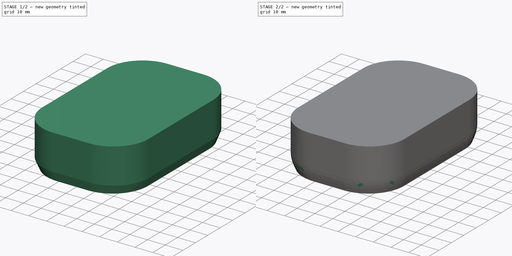
[diagram: build sequence overview — one tinted view per stage of 2, left to right]
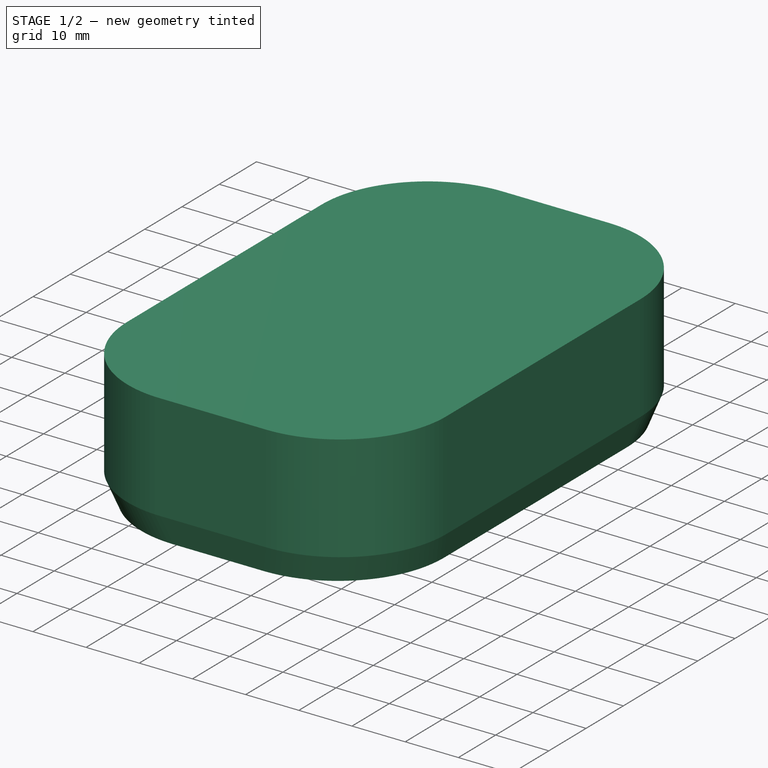
[diagram: stage 1 of 2 — iso view after this stage's code; geometry added in this stage tinted green]
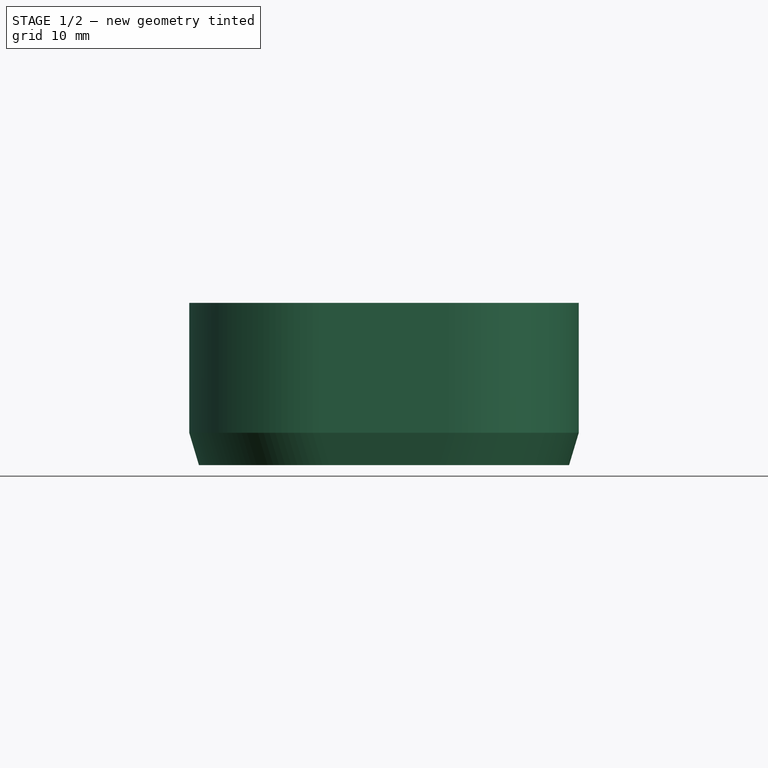
[diagram: stage 1 of 2 — front view after this stage's code; geometry added in this stage tinted green]
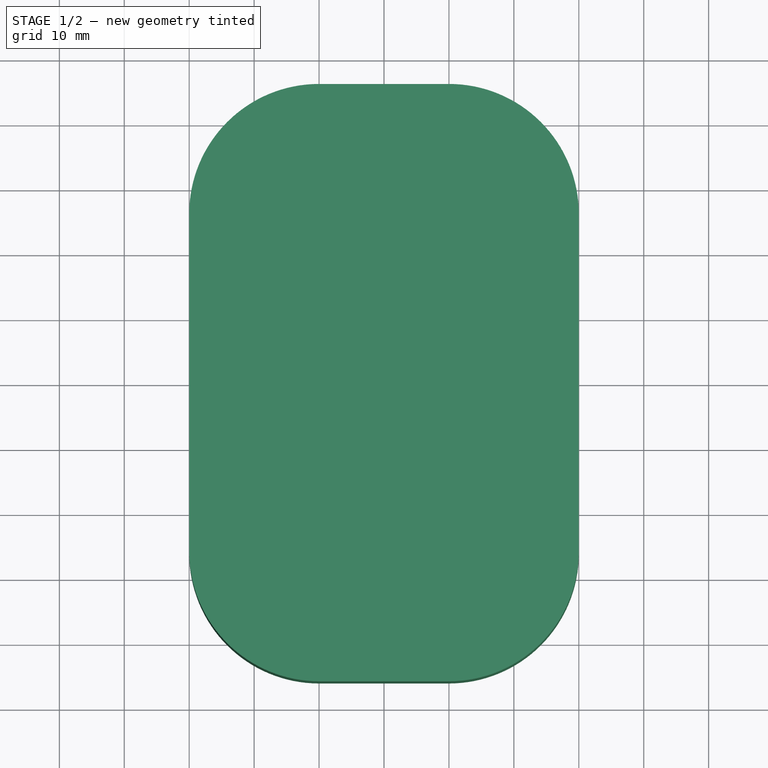
[diagram: stage 1 of 2 — top view after this stage's code; geometry added in this stage tinted green]
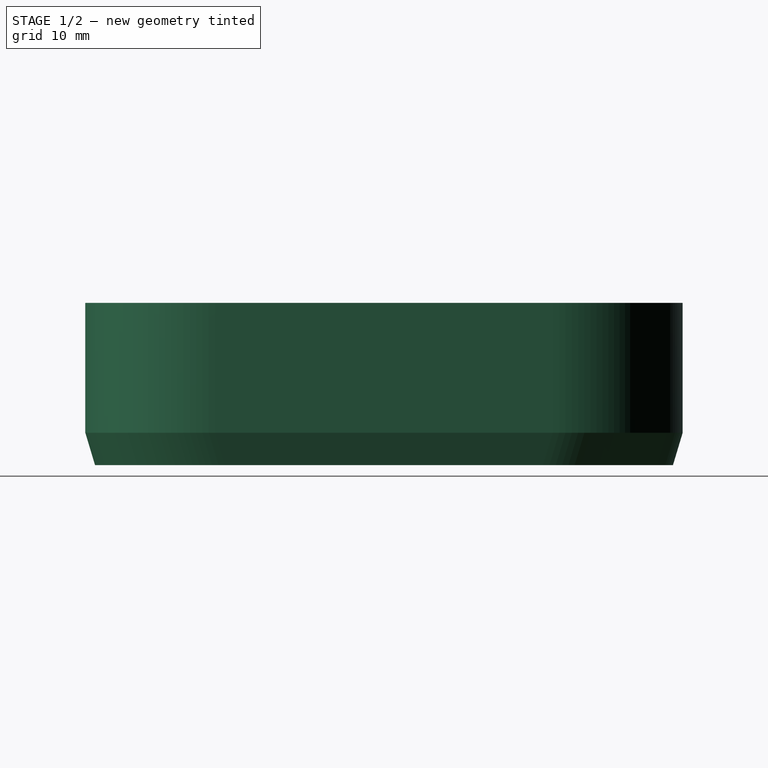
[diagram: stage 1 of 2 — right view after this stage's code; geometry added in this stage tinted green]
FCSTD DOCUMENT  (FreeCAD 0.18.4R)
Label: PetBottlePlate
License: All rights reserved
LicenseURL: http://en.wikipedia.org/wiki/All_rights_reserved
objects: Sketcher::SketchObject×3, PartDesign::AdditiveLoft×1, PartDesign::Fillet×1, PartDesign::Body×1
note: 7 computed .brp shape members not serialized (recipe doc carries the construction recipe); baked Part::Feature solids carry a one-line shape summary decoded from their .brp

FEATURE [Sketcher::SketchObject] Sketch
  AttachmentOffset = pos=(0,0,5) rot=(0,0,1;0rad)
  MapMode = 5
  Placement = pos=(0,0,5) rot=(0,0,1;0rad)
  Support = -> [XY_Plane]
  sketch-geometry (8):
    g0: LineSegment StartX=-10 StartY=46 StartZ=0 EndX=10 EndY=46 EndZ=0
    g1: LineSegment StartX=30 StartY=26 StartZ=0 EndX=30 EndY=-26 EndZ=0
    g2: LineSegment StartX=10 StartY=-46 StartZ=0 EndX=-10 EndY=-46 EndZ=0
    g3: LineSegment StartX=-30 StartY=-26 StartZ=0 EndX=-30 EndY=26 EndZ=0
    g4: ArcOfCircle CenterX=-10 CenterY=26 CenterZ=0 NormalX=0 NormalY=0 NormalZ=1 AngleXU=0 Radius=20 StartAngle=1.5708 EndAngle=3.14159
    g5: ArcOfCircle CenterX=10 CenterY=26 CenterZ=0 NormalX=0 NormalY=0 NormalZ=1 AngleXU=0 Radius=20 StartAngle=0 EndAngle=1.5708
    g6: ArcOfCircle CenterX=10 CenterY=-26 CenterZ=0 NormalX=0 NormalY=0 NormalZ=1 AngleXU=0 Radius=20 StartAngle=4.71239 EndAngle=6.28319
    g7: ArcOfCircle CenterX=-10 CenterY=-26 CenterZ=0 NormalX=0 NormalY=0 NormalZ=1 AngleXU=0 Radius=20 StartAngle=3.14159 EndAngle=4.71239
  constraints (19):
    c: Horizontal(g0)
    c: Horizontal(g2)
    c: Vertical(g1)
    c: Vertical(g3)
    c: Tangent(g0,g4) = 1.5708
    c: Tangent(g3,g4) = 1.5708
    c: Tangent(g0,g5) = 1.5708
    c: Tangent(g1,g5) = 1.5708
    c: Tangent(g1,g6) = 1.5708
    c: Tangent(g2,g6) = 1.5708
    c: Tangent(g2,g7) = 1.5708
    c: Tangent(g3,g7) = 1.5708
    c: Equal(g4,g5)
    c: Equal(g5,g6)
    c: Equal(g6,g7)
    c: DistanceX(g3,g1) = 60
    c: DistanceY(g2,g0) = 92
    c: Radius(g4) = 20
    c: Symmetric(g7,g5,g-1)
FEATURE [Sketcher::SketchObject] Sketch001
  MapMode = 5
  Support = -> [XY_Plane]
  sketch-geometry (8):
    g0: LineSegment StartX=-8.5 StartY=44.5 StartZ=0 EndX=8.5 EndY=44.5 EndZ=0
    g1: LineSegment StartX=28.5 StartY=24.5 StartZ=0 EndX=28.5 EndY=-24.5 EndZ=0
    g2: LineSegment StartX=8.5 StartY=-44.5 StartZ=0 EndX=-8.5 EndY=-44.5 EndZ=0
    g3: LineSegment StartX=-28.5 StartY=-24.5 StartZ=0 EndX=-28.5 EndY=24.5 EndZ=0
    g4: ArcOfCircle CenterX=-8.5 CenterY=24.5 CenterZ=0 NormalX=0 NormalY=0 NormalZ=1 AngleXU=0 Radius=20 StartAngle=1.5708 EndAngle=3.14159
    g5: ArcOfCircle CenterX=8.5 CenterY=24.5 CenterZ=0 NormalX=0 NormalY=0 NormalZ=1 AngleXU=0 Radius=20 StartAngle=-8.9e-15 EndAngle=1.5708
    g6: ArcOfCircle CenterX=8.5 CenterY=-24.5 CenterZ=0 NormalX=0 NormalY=0 NormalZ=1 AngleXU=0 Radius=20 StartAngle=4.71239 EndAngle=6.28319
    g7: ArcOfCircle CenterX=-8.5 CenterY=-24.5 CenterZ=0 NormalX=0 NormalY=0 NormalZ=1 AngleXU=0 Radius=20 StartAngle=3.14159 EndAngle=4.71239
  constraints (19):
    c: Horizontal(g0)
    c: Horizontal(g2)
    c: Vertical(g1)
    c: Vertical(g3)
    c: Tangent(g0,g4) = 1.5708
    c: Tangent(g3,g4) = 1.5708
    c: Tangent(g0,g5) = 1.5708
    c: Tangent(g1,g5) = 1.5708
    c: Tangent(g1,g6) = 1.5708
    c: Tangent(g2,g6) = 1.5708
    c: Tangent(g2,g7) = 1.5708
    c: Tangent(g3,g7) = 1.5708
    c: Equal(g4,g5)
    c: Equal(g5,g6)
    c: Equal(g6,g7)
    c: DistanceX(g3,g1) = 57
    c: DistanceY(g2,g0) = 89
    c: Radius(g4) = 20
    c: Symmetric(g7,g5,g-1)
FEATURE [Sketcher::SketchObject] Sketch002
  AttachmentOffset = pos=(0,0,25) rot=(0,0,1;0rad)
  MapMode = 5
  Placement = pos=(0,0,25) rot=(0,0,1;0rad)
  Support = -> [XY_Plane]
  sketch-geometry (8):
    g0: LineSegment StartX=-10 StartY=46 StartZ=0 EndX=10 EndY=46 EndZ=0
    g1: LineSegment StartX=30 StartY=26 StartZ=0 EndX=30 EndY=-26 EndZ=0
    g2: LineSegment StartX=10 StartY=-46 StartZ=0 EndX=-10 EndY=-46 EndZ=0
    g3: LineSegment StartX=-30 StartY=-26 StartZ=0 EndX=-30 EndY=26 EndZ=0
    g4: ArcOfCircle CenterX=-10 CenterY=26 CenterZ=0 NormalX=0 NormalY=0 NormalZ=1 AngleXU=0 Radius=20 StartAngle=1.5708 EndAngle=3.14159
    g5: ArcOfCircle CenterX=10 CenterY=26 CenterZ=0 NormalX=0 NormalY=0 NormalZ=1 AngleXU=0 Radius=20 StartAngle=0 EndAngle=1.5708
    g6: ArcOfCircle CenterX=10 CenterY=-26 CenterZ=0 NormalX=0 NormalY=0 NormalZ=1 AngleXU=0 Radius=20 StartAngle=4.71239 EndAngle=6.28319
    g7: ArcOfCircle CenterX=-10 CenterY=-26 CenterZ=0 NormalX=0 NormalY=0 NormalZ=1 AngleXU=0 Radius=20 StartAngle=3.14159 EndAngle=4.71239
  constraints (19):
    c: Horizontal(g0)
    c: Horizontal(g2)
    c: Vertical(g1)
    c: Vertical(g3)
    c: Tangent(g0,g4) = 1.5708
    c: Tangent(g3,g4) = 1.5708
    c: Tangent(g0,g5) = 1.5708
    c: Tangent(g1,g5) = 1.5708
    c: Tangent(g1,g6) = 1.5708
    c: Tangent(g2,g6) = 1.5708
    c: Tangent(g2,g7) = 1.5708
    c: Tangent(g3,g7) = 1.5708
    c: Equal(g4,g5)
    c: Equal(g5,g6)
    c: Equal(g6,g7)
    c: DistanceX(g3,g1) = 60
    c: DistanceY(g2,g0) = 92
    c: Radius(g4) = 20
    c: Symmetric(g7,g5,g-1)
FEATURE [PartDesign::AdditiveLoft] AdditiveLoft
  Closed = false
  Profile = -> Sketch001
  Ruled = true
  Sections = -> [Sketch,Sketch002]
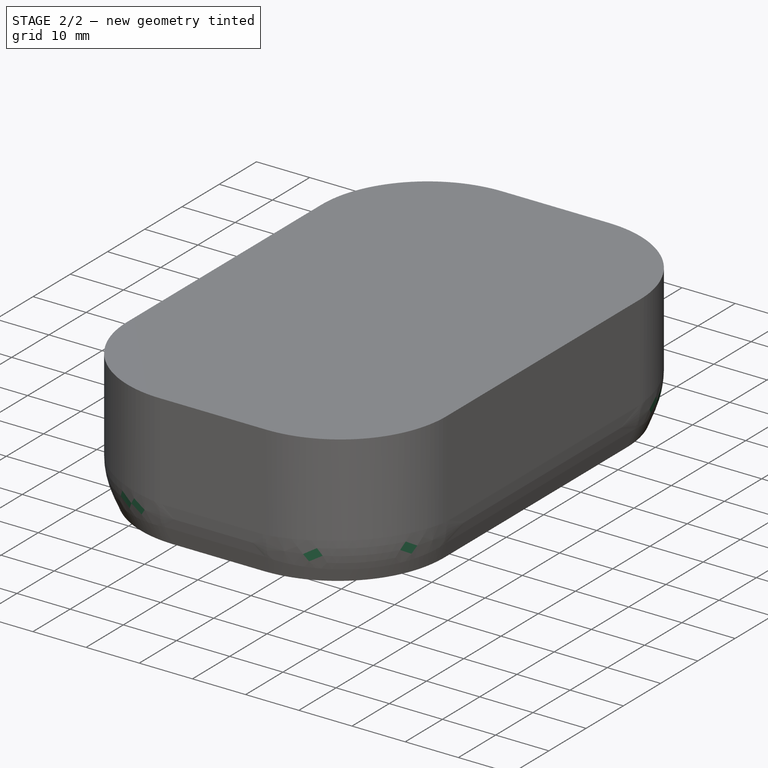
[diagram: stage 2 of 2 — iso view after this stage's code; geometry added in this stage tinted green]
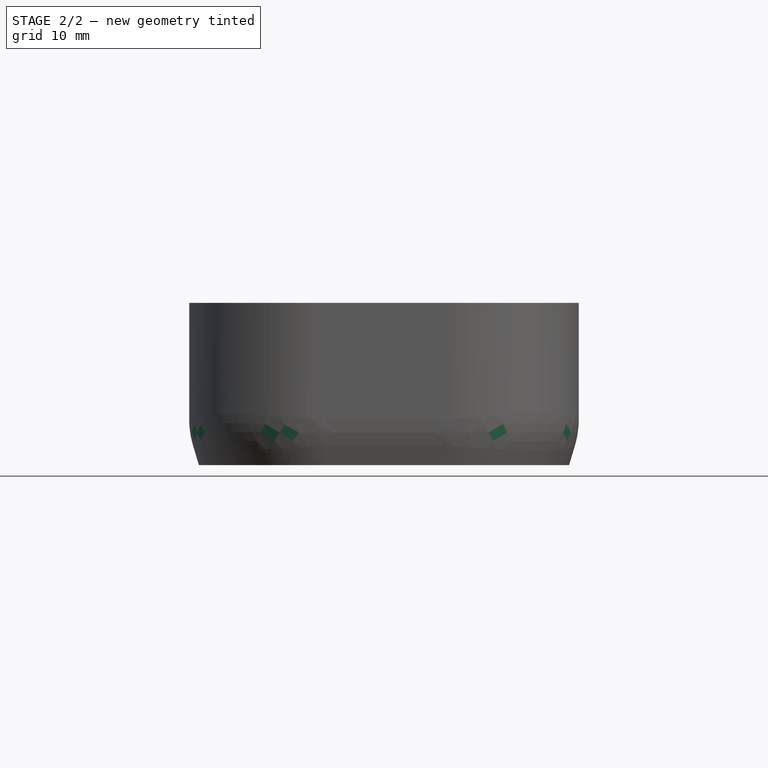
[diagram: stage 2 of 2 — front view after this stage's code; geometry added in this stage tinted green]
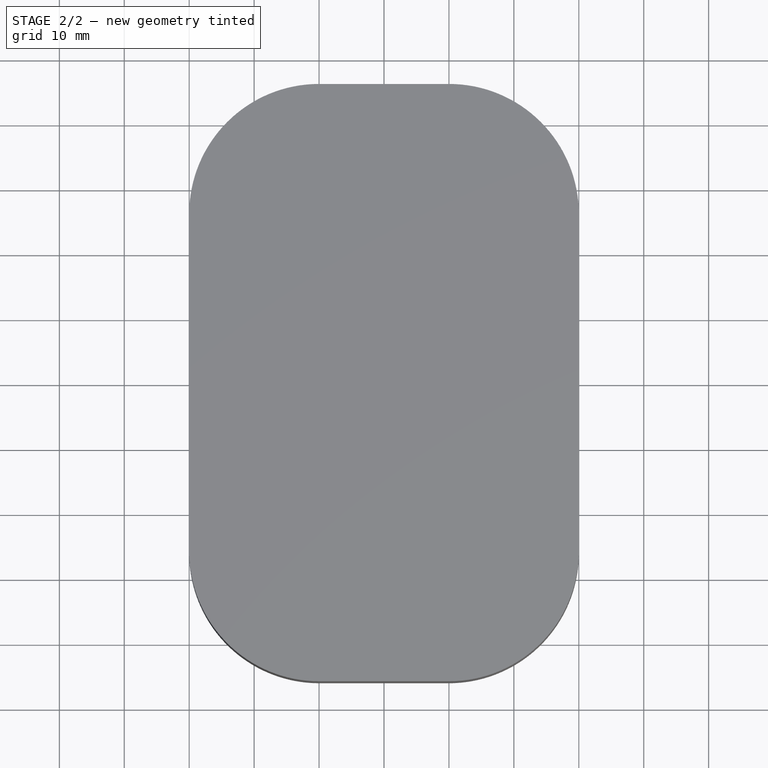
[diagram: stage 2 of 2 — top view after this stage's code; geometry added in this stage tinted green]
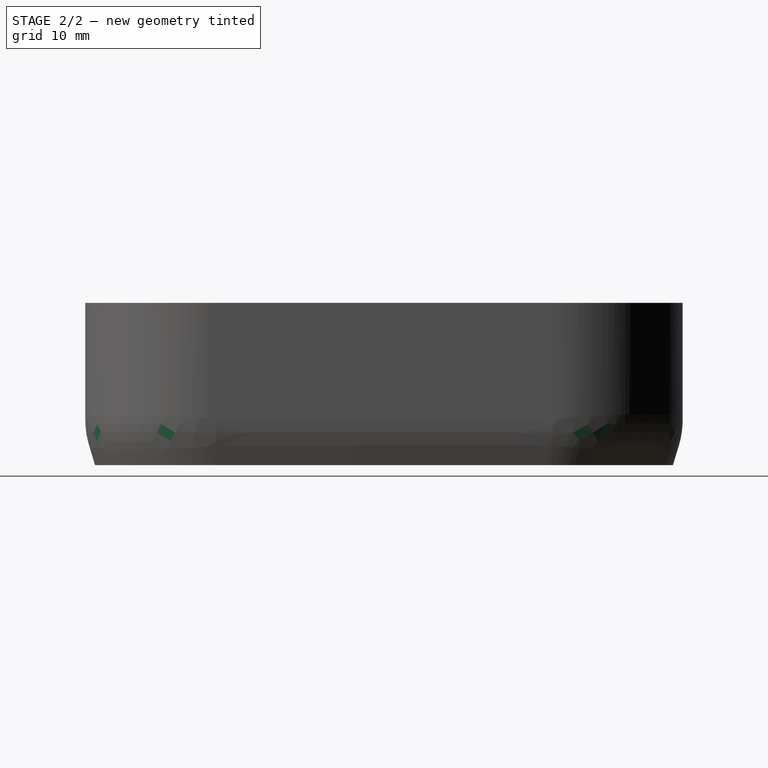
[diagram: stage 2 of 2 — right view after this stage's code; geometry added in this stage tinted green]
FEATURE [PartDesign::Fillet] Fillet
  Base = -> AdditiveLoft [Edge10]
  BaseFeature = -> AdditiveLoft
  Radius = 14
FEATURE [PartDesign::Body] Body
  Group = -> [Sketch001,Sketch,Sketch002,AdditiveLoft,Fillet]
  Origin = -> Origin
  Tip = -> Fillet
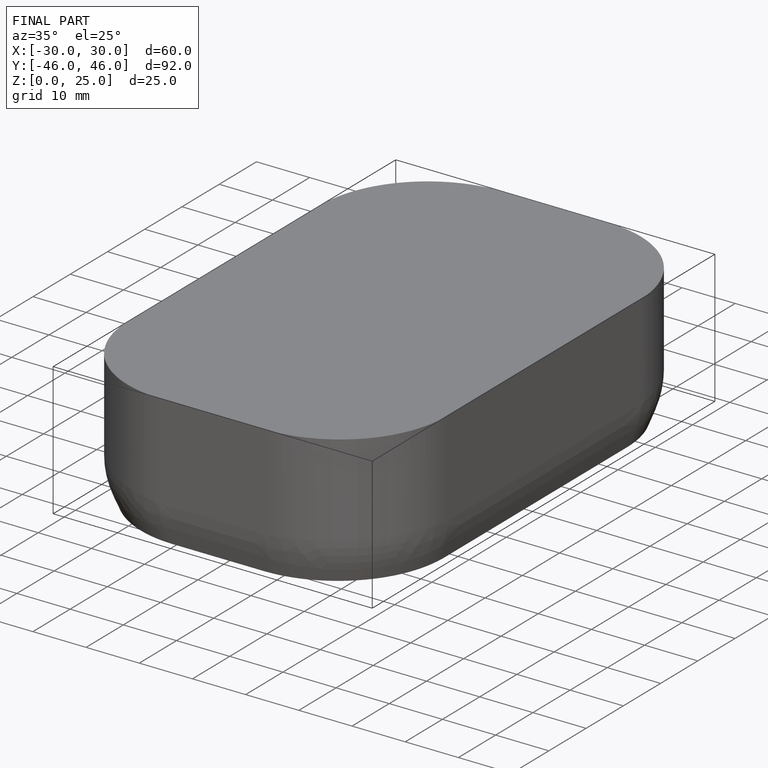
[diagram: finished part — iso view with bounding-box wireframe]
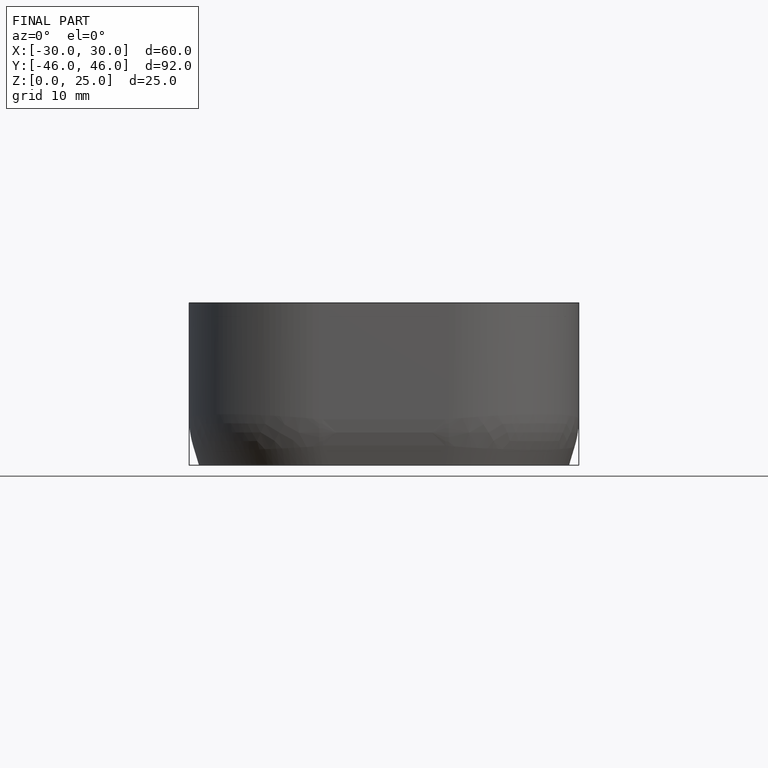
[diagram: finished part — front view with bounding-box wireframe]
